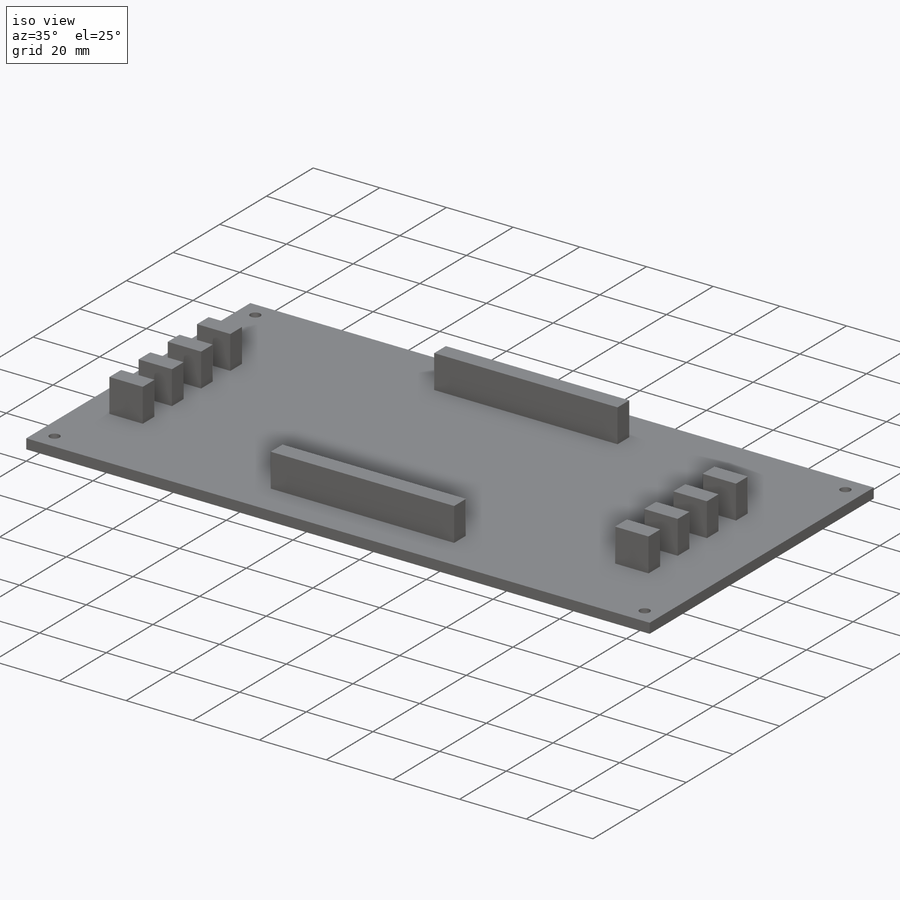
[diagram: iso view]
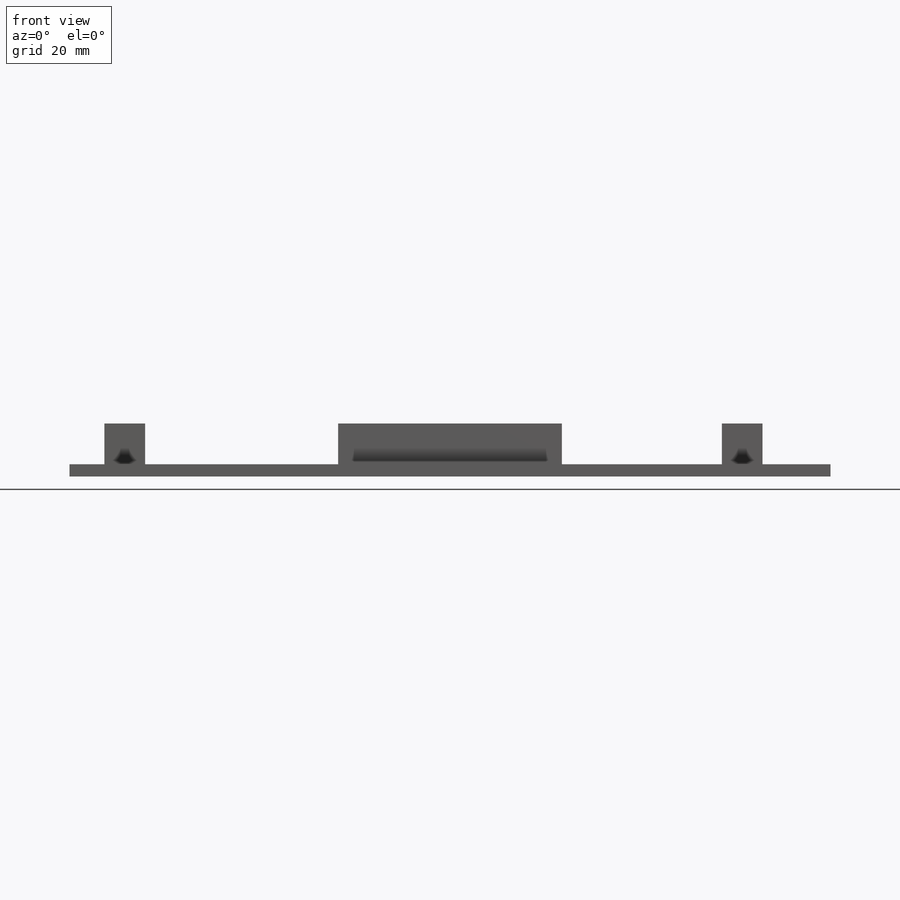
[diagram: front view]
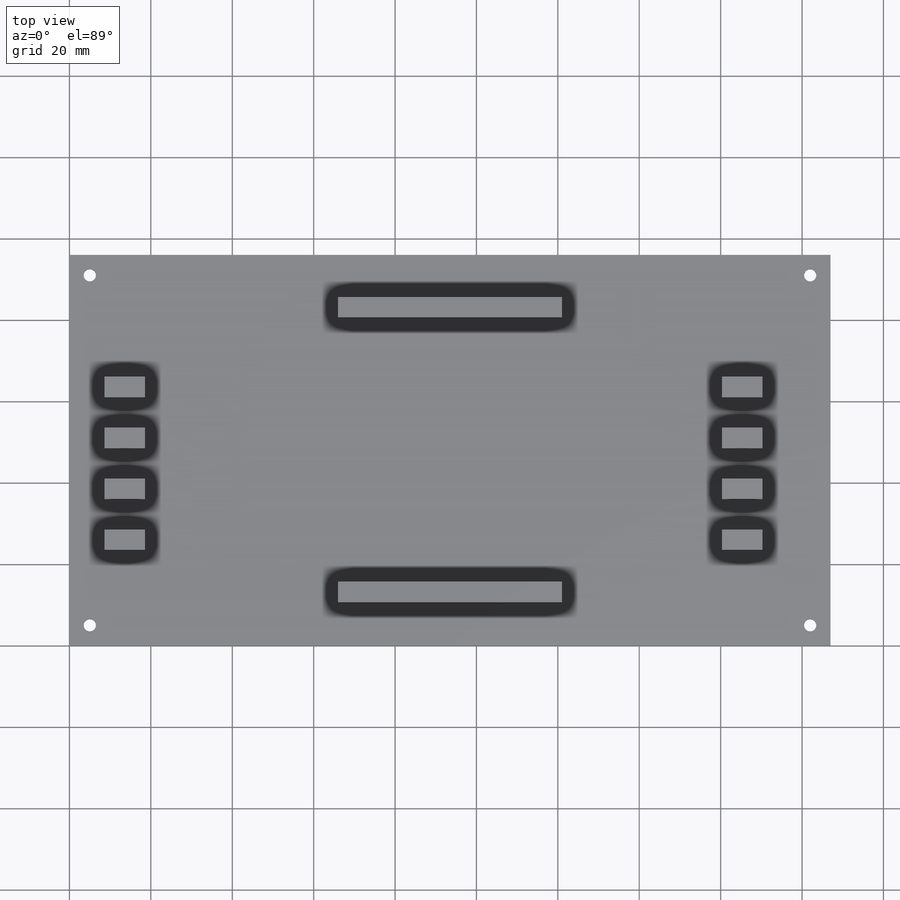
[diagram: top view]
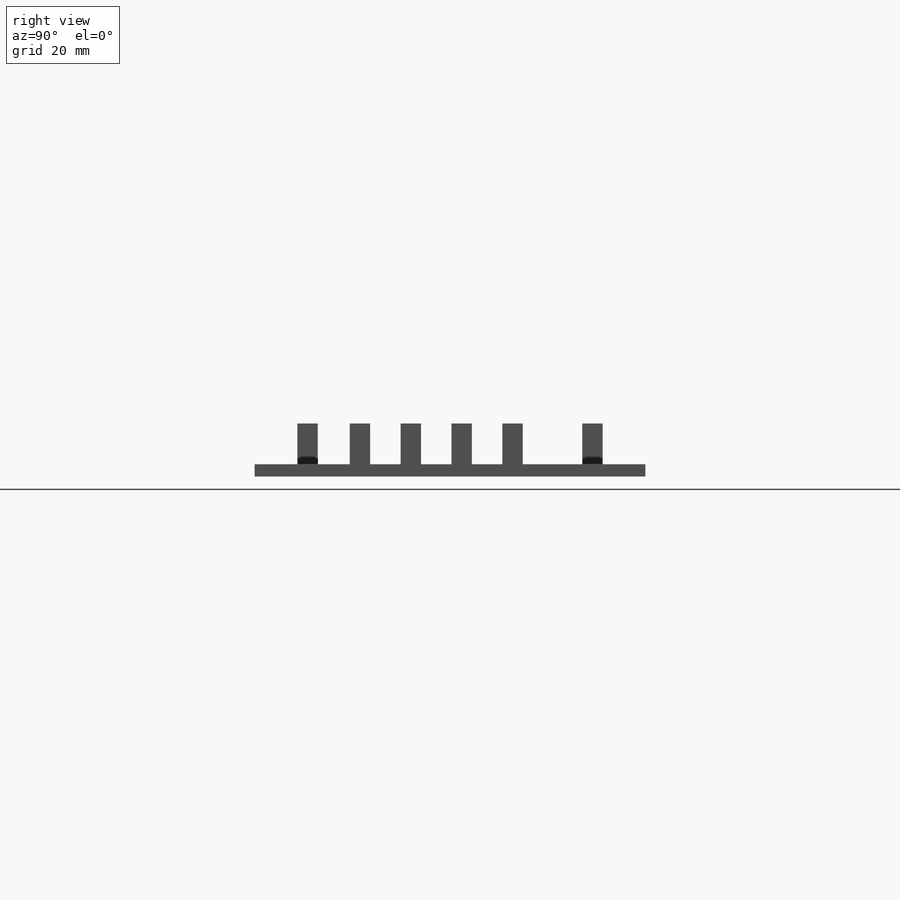
[diagram: right view]
SOLIDWORKS PART (.sldprt)
format: sldprt  version: not decoded by parser v0  size: 222,208 bytes
history: native  units: mm
features: plane x3, sketch x3, extrude x3, material x1 (+9 scaffold rows collapsed)
feature tree (19):
  scaffold x9  (default folders/planes/origin — collapsed)
  material  "Material <not specified>"
  plane  "Face"
  plane  "Dessus"
  plane  "Droite"
  sketch  "Esquisse1"  dims[D3=3.0mm D1=96.0mm D2=187.0mm D4=5.0mm D5=5.0mm]
  extrude  "Extrusion1"  Depth=3mm
  sketch  "Esquisse2"  dims[D1=65.0mm D2=5.0mm D3=22.0mm D4=55.0mm D5=18.0mm]
  extrude  "Extrusion2"  Depth=10mm
  sketch  "Esquisse4"  dims[c1.D1=10.0mm c1.D2=5.0mm c1.D3=7.5mm c1.D4=7.5mm c1.D5=7.5mm c2.D3=7.5mm c2.D4=7.5mm c2.D5=7.5mm c2.D6=10.0mm c2.D7=5.0mm c2.D8=7.5mm c2.D9=7.5mm c2.D10=7.5mm]
  extrude  "Extrusion4"  Depth=10mm
decode coverage: 6 of 6 modeling features carry decoded parameters
note: suppression state not decoded; provenance and decode notes live in map.json
